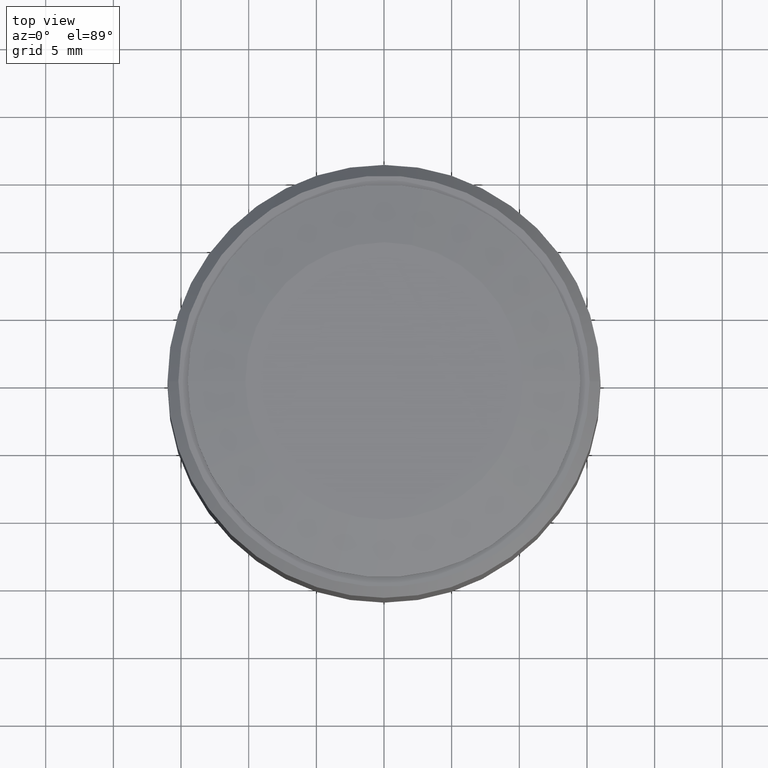
[diagram: clean part render]
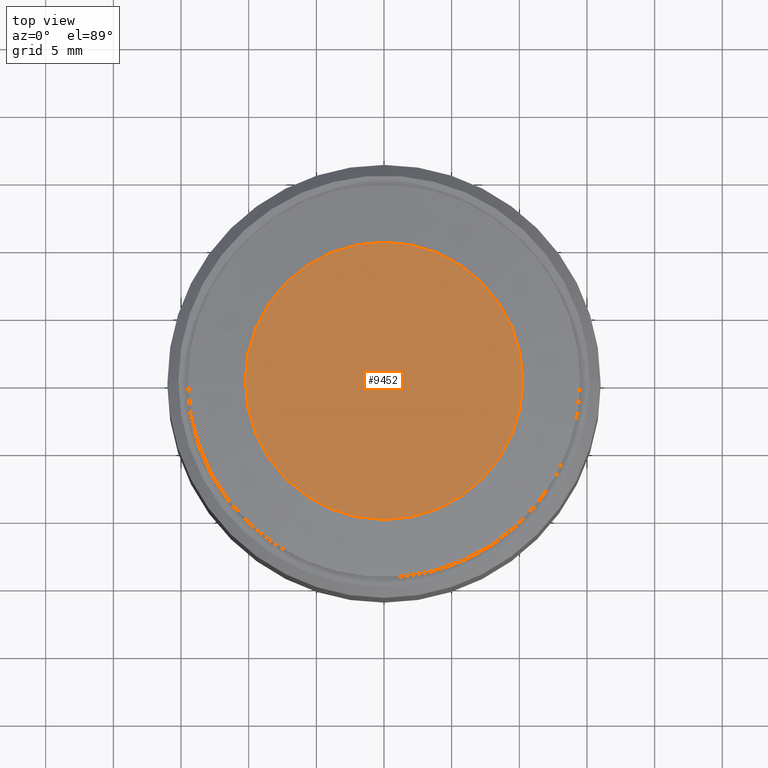
[diagram: same view with one face highlighted and labeled with its STEP entity id]
A machine part, top view. The second image highlights one B-rep face of the part: STEP entity #9452.
In plain terms, the highlighted planar face has unit normal (0, 0, 1).
Its self-contained STEP definition (entity closure, byte-faithful):
#699 = CARTESIAN_POINT ( 'NONE',  ( 0.000000000000000000, 0.000000000000000000, 29.50600000000000023 ) ) ;
#1148 = DIRECTION ( 'NONE',  ( 1.000000000000000000, 0.000000000000000000, 0.000000000000000000 ) ) ;
#2064 = FACE_OUTER_BOUND ( 'NONE', #13368, .T. ) ;
#2227 = CARTESIAN_POINT ( 'NONE',  ( 10.25000000000000000, 1.515500413944849628E-15, 29.50600000000000023 ) ) ;
#2801 = DIRECTION ( 'NONE',  ( 0.000000000000000000, 0.000000000000000000, 1.000000000000000000 ) ) ;
#5793 = DIRECTION ( 'NONE',  ( 0.000000000000000000, 0.000000000000000000, 1.000000000000000000 ) ) ;
#6983 = AXIS2_PLACEMENT_3D ( 'NONE', #13947, #20723, #12274 ) ;
#7166 = PLANE ( 'NONE',  #6983 ) ;
#7870 = VERTEX_POINT ( 'NONE', #9639 ) ;
#8080 = EDGE_CURVE ( 'NONE', #17948, #7870, #14425, .T. ) ;
#9452 = ADVANCED_FACE ( 'NONE', ( #2064 ), #7166, .T. ) ;
#9639 = CARTESIAN_POINT ( 'NONE',  ( -10.25000000000000000, 0.000000000000000000, 29.50600000000000023 ) ) ;
#12079 = CIRCLE ( 'NONE', #18475, 10.25000000000000000 ) ;
#12274 = DIRECTION ( 'NONE',  ( 1.000000000000000000, 0.000000000000000000, 0.000000000000000000 ) ) ;
#13368 = EDGE_LOOP ( 'NONE', ( #13665, #18834 ) ) ;
#13665 = ORIENTED_EDGE ( 'NONE', *, *, #20707, .T. ) ;
#13947 = CARTESIAN_POINT ( 'NONE',  ( 0.000000000000000000, 0.000000000000000000, 29.50600000000000023 ) ) ;
#14075 = AXIS2_PLACEMENT_3D ( 'NONE', #699, #2801, #1148 ) ;
#14237 = CARTESIAN_POINT ( 'NONE',  ( 0.000000000000000000, 0.000000000000000000, 29.50600000000000023 ) ) ;
#14425 = CIRCLE ( 'NONE', #14075, 10.25000000000000000 ) ;
#17948 = VERTEX_POINT ( 'NONE', #2227 ) ;
#18475 = AXIS2_PLACEMENT_3D ( 'NONE', #14237, #5793, #19568 ) ;
#18834 = ORIENTED_EDGE ( 'NONE', *, *, #8080, .T. ) ;
#19568 = DIRECTION ( 'NONE',  ( 1.000000000000000000, 0.000000000000000000, 0.000000000000000000 ) ) ;
#20707 = EDGE_CURVE ( 'NONE', #7870, #17948, #12079, .T. ) ;
#20723 = DIRECTION ( 'NONE',  ( 0.000000000000000000, 0.000000000000000000, 1.000000000000000000 ) ) ;